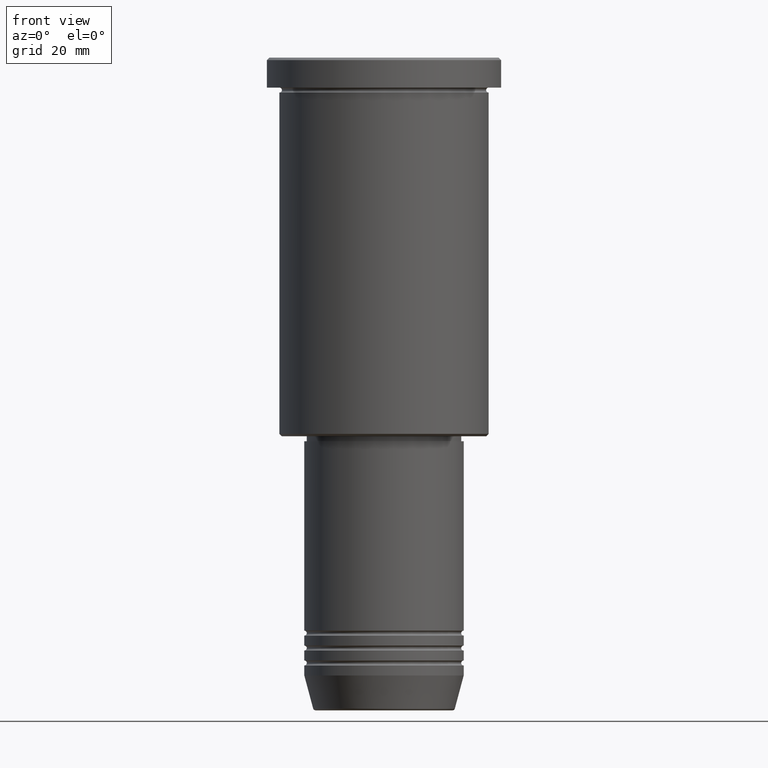
[diagram: clean part render]
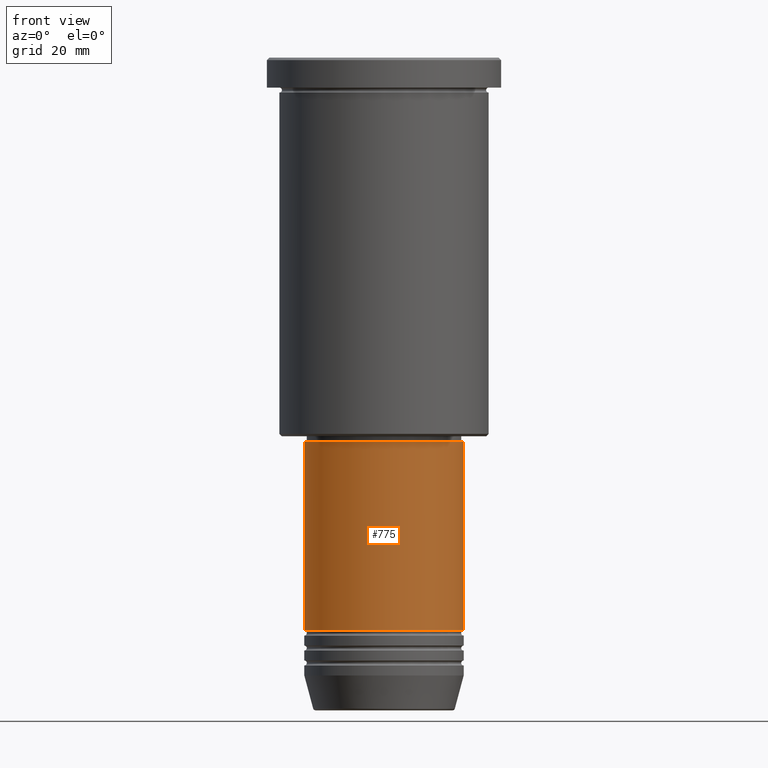
[diagram: same view with one face highlighted and labeled with its STEP entity id]
A machine part, front view. The second image highlights one B-rep face of the part: STEP entity #775.
In plain terms, the highlighted cylindrical surface (partial cylindrical patch) has radius 16 mm, axis along (-0, -0, 1).
Its self-contained STEP definition (entity closure, byte-faithful):
#16 = EDGE_CURVE ( 'NONE', #221, #1034, #411, .T. ) ;
#32 = CARTESIAN_POINT ( 'NONE',  ( -16.00000000000000000, 1.959434878635765131E-15, -76.99999999999998579 ) ) ;
#49 = EDGE_CURVE ( 'NONE', #148, #987, #683, .T. ) ;
#95 = ORIENTED_EDGE ( 'NONE', *, *, #49, .T. ) ;
#98 = VECTOR ( 'NONE', #594, 1000.000000000000000 ) ;
#148 = VERTEX_POINT ( 'NONE', #1013 ) ;
#177 = CIRCLE ( 'NONE', #720, 16.00000000000000000 ) ;
#204 = DIRECTION ( 'NONE',  ( -0.000000000000000000, -0.000000000000000000, 1.000000000000000000 ) ) ;
#219 = DIRECTION ( 'NONE',  ( 1.000000000000000000, 0.000000000000000000, 0.000000000000000000 ) ) ;
#221 = VERTEX_POINT ( 'NONE', #609 ) ;
#225 = EDGE_LOOP ( 'NONE', ( #231, #431, #95, #387 ) ) ;
#231 = ORIENTED_EDGE ( 'NONE', *, *, #16, .F. ) ;
#236 = CARTESIAN_POINT ( 'NONE',  ( 16.00000000000000000, 0.000000000000000000, 0.000000000000000000 ) ) ;
#387 = ORIENTED_EDGE ( 'NONE', *, *, #1106, .F. ) ;
#411 = LINE ( 'NONE', #884, #572 ) ;
#431 = ORIENTED_EDGE ( 'NONE', *, *, #991, .T. ) ;
#559 = CARTESIAN_POINT ( 'NONE',  ( 0.000000000000000000, 0.000000000000000000, -114.9999999999999574 ) ) ;
#572 = VECTOR ( 'NONE', #965, 1000.000000000000000 ) ;
#584 = DIRECTION ( 'NONE',  ( -0.000000000000000000, -0.000000000000000000, 1.000000000000000000 ) ) ;
#594 = DIRECTION ( 'NONE',  ( -0.000000000000000000, -0.000000000000000000, 1.000000000000000000 ) ) ;
#603 = DIRECTION ( 'NONE',  ( -0.000000000000000000, -0.000000000000000000, 1.000000000000000000 ) ) ;
#609 = CARTESIAN_POINT ( 'NONE',  ( -16.00000000000000000, 1.959434878635765131E-15, -114.9999999999999574 ) ) ;
#683 = LINE ( 'NONE', #236, #98 ) ;
#710 = CYLINDRICAL_SURFACE ( 'NONE', #963, 16.00000000000000000 ) ;
#720 = AXIS2_PLACEMENT_3D ( 'NONE', #954, #584, #219 ) ;
#775 = ADVANCED_FACE ( 'NONE', ( #1090 ), #710, .T. ) ;
#780 = CIRCLE ( 'NONE', #824, 16.00000000000000000 ) ;
#824 = AXIS2_PLACEMENT_3D ( 'NONE', #559, #204, #925 ) ;
#884 = CARTESIAN_POINT ( 'NONE',  ( -16.00000000000000000, 1.959434878635765131E-15, 0.000000000000000000 ) ) ;
#925 = DIRECTION ( 'NONE',  ( 1.000000000000000000, 0.000000000000000000, 0.000000000000000000 ) ) ;
#954 = CARTESIAN_POINT ( 'NONE',  ( 0.000000000000000000, 0.000000000000000000, -76.99999999999998579 ) ) ;
#963 = AXIS2_PLACEMENT_3D ( 'NONE', #990, #603, #995 ) ;
#965 = DIRECTION ( 'NONE',  ( -0.000000000000000000, -0.000000000000000000, 1.000000000000000000 ) ) ;
#987 = VERTEX_POINT ( 'NONE', #1104 ) ;
#990 = CARTESIAN_POINT ( 'NONE',  ( 0.000000000000000000, 0.000000000000000000, 0.000000000000000000 ) ) ;
#991 = EDGE_CURVE ( 'NONE', #221, #148, #780, .T. ) ;
#995 = DIRECTION ( 'NONE',  ( 1.000000000000000000, 0.000000000000000000, 0.000000000000000000 ) ) ;
#1013 = CARTESIAN_POINT ( 'NONE',  ( 16.00000000000000000, 0.000000000000000000, -114.9999999999999574 ) ) ;
#1034 = VERTEX_POINT ( 'NONE', #32 ) ;
#1090 = FACE_OUTER_BOUND ( 'NONE', #225, .T. ) ;
#1104 = CARTESIAN_POINT ( 'NONE',  ( 16.00000000000000000, 0.000000000000000000, -76.99999999999998579 ) ) ;
#1106 = EDGE_CURVE ( 'NONE', #1034, #987, #177, .T. ) ;